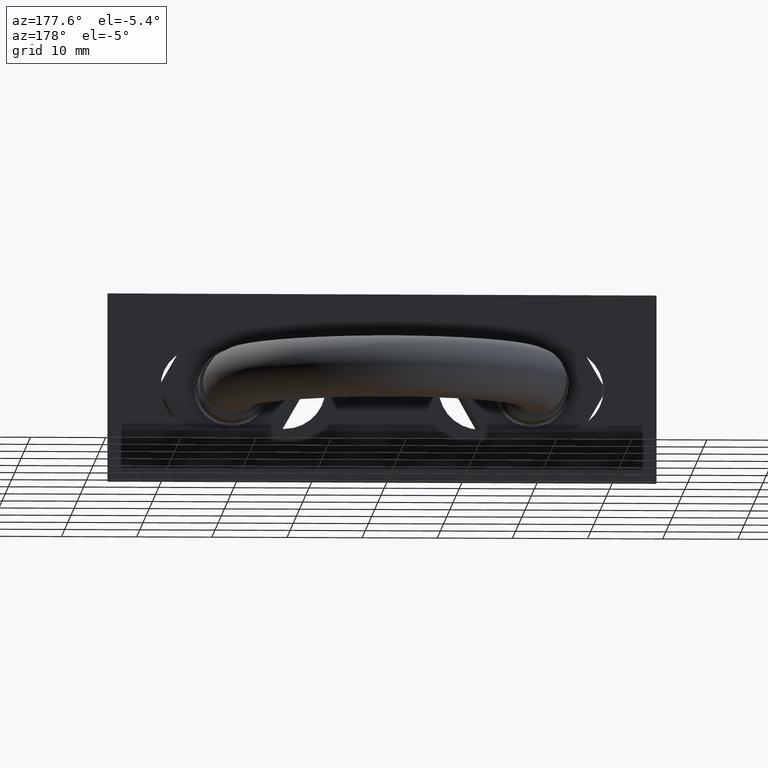
[diagram: clean part render]
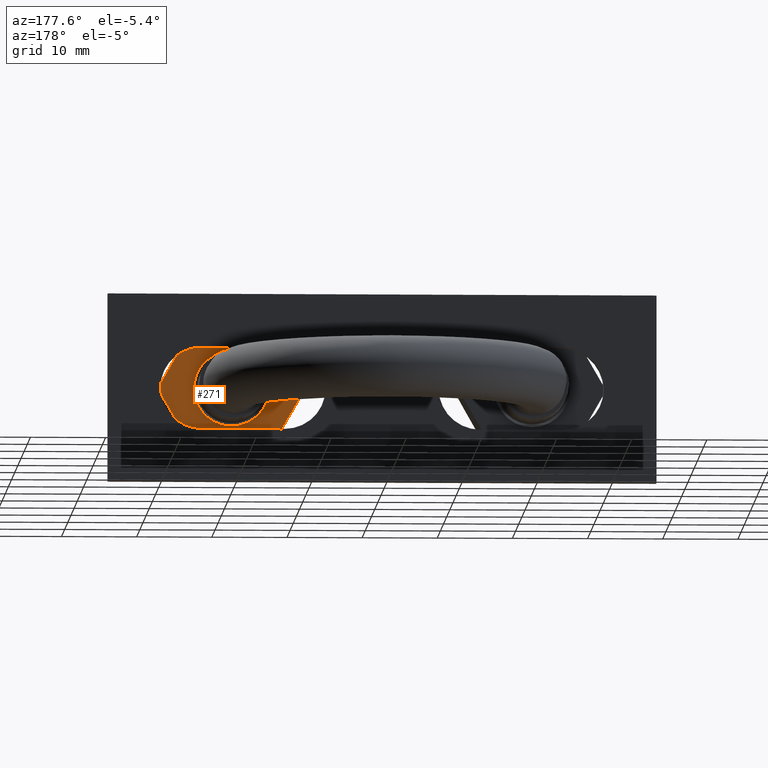
[diagram: same view with one face highlighted and labeled with its STEP entity id]
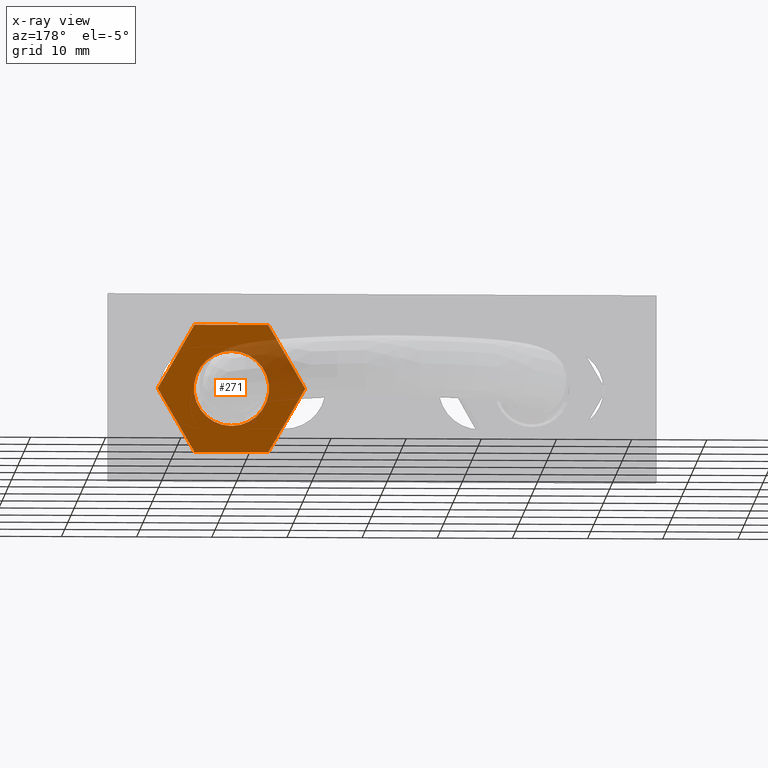
[diagram: x-ray of the same camera — body ghosted, the highlighted face saturated]
A machine part, auxiliary view. The second image highlights one B-rep face of the part: STEP entity #271.
The next image is the same camera in x-ray: the body ghosted, the highlighted face saturated — about 22% of this face is hidden behind the body in this view.
In plain terms, the highlighted planar face has unit normal (-0, -1, 0).
Its self-contained STEP definition (entity closure, byte-faithful):
#271 = ADVANCED_FACE( '', ( #410, #411 ), #412, .F. );
#410 = FACE_BOUND( '', #730, .T. );
#411 = FACE_OUTER_BOUND( '', #731, .T. );
#412 = PLANE( '', #732 );
#730 = EDGE_LOOP( '', ( #1157 ) );
#731 = EDGE_LOOP( '', ( #1158, #1159, #1160, #1161, #1162, #1163, #1164, #1165, #1166, #1167, #1168, #1169 ) );
#732 = AXIS2_PLACEMENT_3D( '', #1170, #1171, #1172 );
#1157 = ORIENTED_EDGE( '', *, *, #1420, .F. );
#1158 = ORIENTED_EDGE( '', *, *, #1421, .T. );
#1159 = ORIENTED_EDGE( '', *, *, #1422, .T. );
#1160 = ORIENTED_EDGE( '', *, *, #1423, .T. );
#1161 = ORIENTED_EDGE( '', *, *, #1416, .T. );
#1162 = ORIENTED_EDGE( '', *, *, #1424, .T. );
#1163 = ORIENTED_EDGE( '', *, *, #1425, .T. );
#1164 = ORIENTED_EDGE( '', *, *, #1426, .T. );
#1165 = ORIENTED_EDGE( '', *, *, #1427, .T. );
#1166 = ORIENTED_EDGE( '', *, *, #1428, .T. );
#1167 = ORIENTED_EDGE( '', *, *, #1429, .T. );
#1168 = ORIENTED_EDGE( '', *, *, #1430, .T. );
#1169 = ORIENTED_EDGE( '', *, *, #1431, .T. );
#1170 = CARTESIAN_POINT( '', ( 10.2000000000000, -7.70000000000000, -3.67416876846424E-032 ) );
#1171 = DIRECTION( '', ( -6.12303176911189E-017, -1.00000000000000, 0.000000000000000 ) );
#1172 = DIRECTION( '', ( -3.74915180455534E-033, 2.29561756065155E-049, 1.00000000000000 ) );
#1416 = EDGE_CURVE( '', #1657, #1655, #1658, .T. );
#1420 = EDGE_CURVE( '', #1663, #1663, #1664, .T. );
#1421 = EDGE_CURVE( '', #1665, #1666, #1667, .T. );
#1422 = EDGE_CURVE( '', #1666, #1668, #1669, .T. );
#1423 = EDGE_CURVE( '', #1668, #1657, #1670, .T. );
#1424 = EDGE_CURVE( '', #1655, #1671, #1672, .T. );
#1425 = EDGE_CURVE( '', #1671, #1673, #1674, .T. );
#1426 = EDGE_CURVE( '', #1673, #1675, #1676, .T. );
#1427 = EDGE_CURVE( '', #1675, #1677, #1678, .T. );
#1428 = EDGE_CURVE( '', #1677, #1679, #1680, .T. );
#1429 = EDGE_CURVE( '', #1679, #1681, #1682, .T. );
#1430 = EDGE_CURVE( '', #1681, #1683, #1684, .T. );
#1431 = EDGE_CURVE( '', #1683, #1665, #1685, .T. );
#1655 = VERTEX_POINT( '', #2072 );
#1657 = VERTEX_POINT( '', #2075 );
#1658 = LINE( '', #2076, #2077 );
#1663 = VERTEX_POINT( '', #2090 );
#1664 = CIRCLE( '', #2091, 5.00000000000000 );
#1665 = VERTEX_POINT( '', #2092 );
#1666 = VERTEX_POINT( '', #2093 );
#1667 = CIRCLE( '', #2094, 9.80000000000000 );
#1668 = VERTEX_POINT( '', #2095 );
#1669 = LINE( '', #2096, #2097 );
#1670 = CIRCLE( '', #2098, 9.80000000000000 );
#1671 = VERTEX_POINT( '', #2099 );
#1672 = CIRCLE( '', #2100, 9.80000000000000 );
#1673 = VERTEX_POINT( '', #2101 );
#1674 = LINE( '', #2102, #2103 );
#1675 = VERTEX_POINT( '', #2104 );
#1676 = CIRCLE( '', #2105, 9.80000000000000 );
#1677 = VERTEX_POINT( '', #2106 );
#1678 = LINE( '', #2107, #2108 );
#1679 = VERTEX_POINT( '', #2109 );
#1680 = CIRCLE( '', #2110, 9.80000000000000 );
#1681 = VERTEX_POINT( '', #2111 );
#1682 = LINE( '', #2112, #2113 );
#1683 = VERTEX_POINT( '', #2114 );
#1684 = CIRCLE( '', #2115, 9.80000000000000 );
#1685 = LINE( '', #2116, #2117 );
#2072 = CARTESIAN_POINT( '', ( 29.7999656118192, -7.70000000000000, 0.0259616479013815 ) );
#2075 = CARTESIAN_POINT( '', ( 24.9224662525163, -7.70000000000000, 8.47403835209862 ) );
#2076 = CARTESIAN_POINT( '', ( 24.9112159321677, -7.70000000000000, 8.49352447854375 ) );
#2077 = VECTOR( '', #2407, 1000.00000000000 );
#2090 = CARTESIAN_POINT( '', ( 20.0000000000000, -7.70000000000000, -5.00000000000000 ) );
#2091 = AXIS2_PLACEMENT_3D( '', #2412, #2413, #2414 );
#2092 = CARTESIAN_POINT( '', ( 15.0775337474837, -7.70000000000000, 8.47403835209862 ) );
#2093 = CARTESIAN_POINT( '', ( 15.1225006406971, -7.70000000000000, 8.50000000000000 ) );
#2094 = AXIS2_PLACEMENT_3D( '', #2415, #2416, #2417 );
#2095 = CARTESIAN_POINT( '', ( 24.8774993593029, -7.70000000000000, 8.50000000000000 ) );
#2096 = CARTESIAN_POINT( '', ( 10.2000000000000, -7.70000000000000, 8.50000000000000 ) );
#2097 = VECTOR( '', #2418, 1000.00000000000 );
#2098 = AXIS2_PLACEMENT_3D( '', #2419, #2420, #2421 );
#2099 = CARTESIAN_POINT( '', ( 29.7999656118192, -7.70000000000000, -0.0259616479013813 ) );
#2100 = AXIS2_PLACEMENT_3D( '', #2422, #2423, #2424 );
#2101 = CARTESIAN_POINT( '', ( 24.9224662525163, -7.70000000000000, -8.47403835209862 ) );
#2102 = CARTESIAN_POINT( '', ( 24.9112159321677, -7.70000000000000, -8.49352447854375 ) );
#2103 = VECTOR( '', #2425, 1000.00000000000 );
#2104 = CARTESIAN_POINT( '', ( 24.8774993593029, -7.70000000000000, -8.50000000000000 ) );
#2105 = AXIS2_PLACEMENT_3D( '', #2426, #2427, #2428 );
#2106 = CARTESIAN_POINT( '', ( 15.1225006406971, -7.70000000000000, -8.50000000000000 ) );
#2107 = CARTESIAN_POINT( '', ( 10.2000000000000, -7.70000000000000, -8.50000000000000 ) );
#2108 = VECTOR( '', #2429, 1000.00000000000 );
#2109 = CARTESIAN_POINT( '', ( 15.0775337474837, -7.70000000000000, -8.47403835209862 ) );
#2110 = AXIS2_PLACEMENT_3D( '', #2430, #2431, #2432 );
#2111 = CARTESIAN_POINT( '', ( 10.2000343881808, -7.70000000000000, -0.0259616479013781 ) );
#2112 = CARTESIAN_POINT( '', ( 10.1887840678323, -7.70000000000000, -0.00647552145624942 ) );
#2113 = VECTOR( '', #2433, 1000.00000000000 );
#2114 = CARTESIAN_POINT( '', ( 10.2000343881808, -7.70000000000000, 0.0259616479013787 ) );
#2115 = AXIS2_PLACEMENT_3D( '', #2434, #2435, #2436 );
#2116 = CARTESIAN_POINT( '', ( 10.1887840678323, -7.70000000000000, 0.00647552145624969 ) );
#2117 = VECTOR( '', #2437, 1000.00000000000 );
#2407 = DIRECTION( '', ( 0.500000000000000, -3.06151588455594E-017, -0.866025403784439 ) );
#2412 = CARTESIAN_POINT( '', ( 20.0000000000000, -7.70000000000000, -1.64721842862977E-080 ) );
#2413 = DIRECTION( '', ( 6.12303176911189E-017, 1.00000000000000, 4.86173068582902E-065 ) );
#2414 = DIRECTION( '', ( 3.74915180455535E-033, -2.29561756065155E-049, -1.00000000000000 ) );
#2415 = CARTESIAN_POINT( '', ( 20.0000000000000, -7.70000000000000, -1.64721842862977E-080 ) );
#2416 = DIRECTION( '', ( 6.12303176911189E-017, 1.00000000000000, 5.06219355042588E-065 ) );
#2417 = DIRECTION( '', ( 3.74915180455534E-033, -2.29561756065155E-049, -1.00000000000000 ) );
#2418 = DIRECTION( '', ( 1.00000000000000, -6.12303176911189E-017, 3.74915180455534E-033 ) );
#2419 = CARTESIAN_POINT( '', ( 20.0000000000000, -7.70000000000000, -1.64721842862977E-080 ) );
#2420 = DIRECTION( '', ( 6.12303176911189E-017, 1.00000000000000, 5.06219355042588E-065 ) );
#2421 = DIRECTION( '', ( 3.74915180455534E-033, -2.29561756065155E-049, -1.00000000000000 ) );
#2422 = CARTESIAN_POINT( '', ( 20.0000000000000, -7.70000000000000, -1.64721842862977E-080 ) );
#2423 = DIRECTION( '', ( 6.12303176911189E-017, 1.00000000000000, 5.06219355042588E-065 ) );
#2424 = DIRECTION( '', ( 3.74915180455534E-033, -2.29561756065155E-049, -1.00000000000000 ) );
#2425 = DIRECTION( '', ( -0.500000000000000, 3.06151588455594E-017, -0.866025403784439 ) );
#2426 = CARTESIAN_POINT( '', ( 20.0000000000000, -7.70000000000000, -1.64721842862977E-080 ) );
#2427 = DIRECTION( '', ( 6.12303176911189E-017, 1.00000000000000, 5.06219355042588E-065 ) );
#2428 = DIRECTION( '', ( 3.74915180455534E-033, -2.29561756065155E-049, -1.00000000000000 ) );
#2429 = DIRECTION( '', ( -1.00000000000000, 6.12303176911189E-017, -3.74915180455534E-033 ) );
#2430 = CARTESIAN_POINT( '', ( 20.0000000000000, -7.70000000000000, -1.64721842862977E-080 ) );
#2431 = DIRECTION( '', ( 6.12303176911189E-017, 1.00000000000000, 5.06219355042588E-065 ) );
#2432 = DIRECTION( '', ( 3.74915180455534E-033, -2.29561756065155E-049, -1.00000000000000 ) );
#2433 = DIRECTION( '', ( -0.500000000000000, 3.06151588455594E-017, 0.866025403784439 ) );
#2434 = CARTESIAN_POINT( '', ( 20.0000000000000, -7.70000000000000, -1.64721842862977E-080 ) );
#2435 = DIRECTION( '', ( 6.12303176911189E-017, 1.00000000000000, 5.06219355042588E-065 ) );
#2436 = DIRECTION( '', ( 3.74915180455534E-033, -2.29561756065155E-049, -1.00000000000000 ) );
#2437 = DIRECTION( '', ( 0.500000000000000, -3.06151588455594E-017, 0.866025403784439 ) );